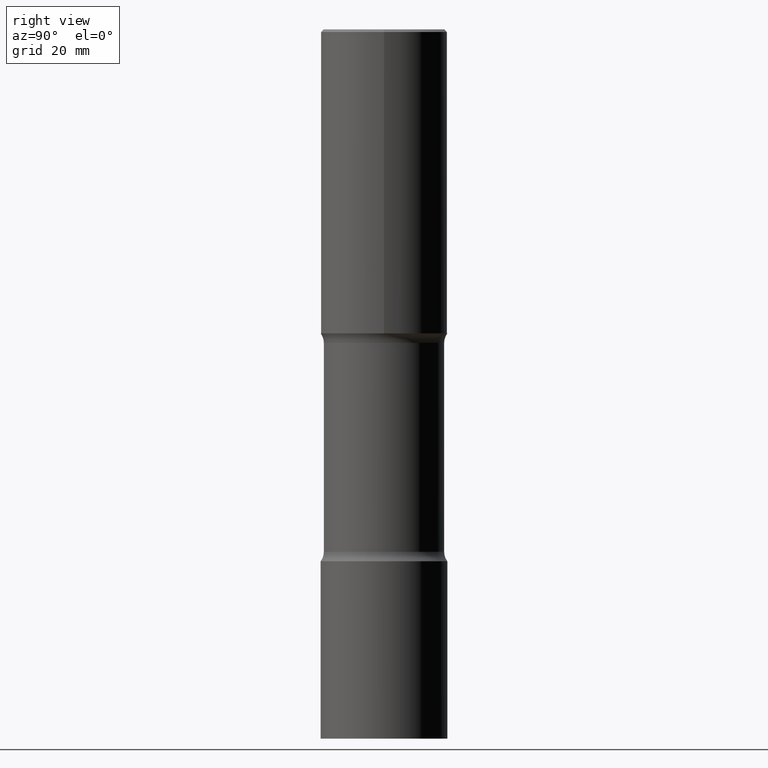
[diagram: clean part render]
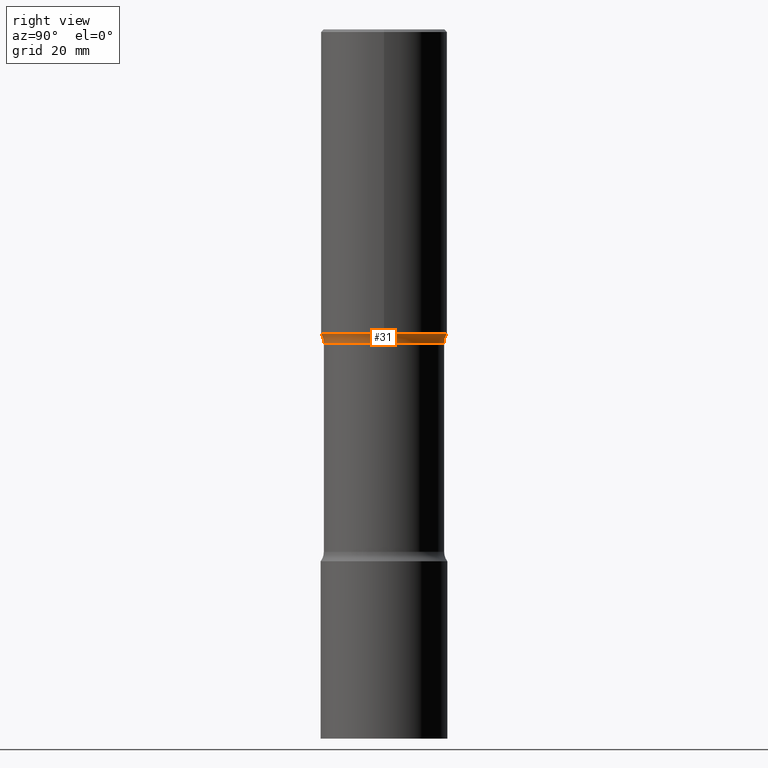
[diagram: same view with one face highlighted and labeled with its STEP entity id]
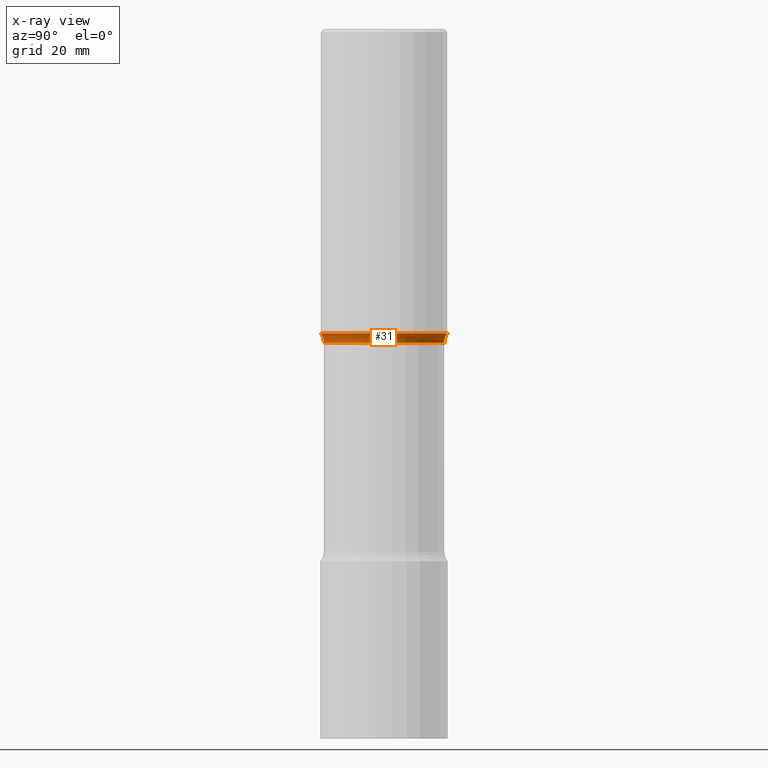
[diagram: x-ray of the same camera — body ghosted, the highlighted face saturated]
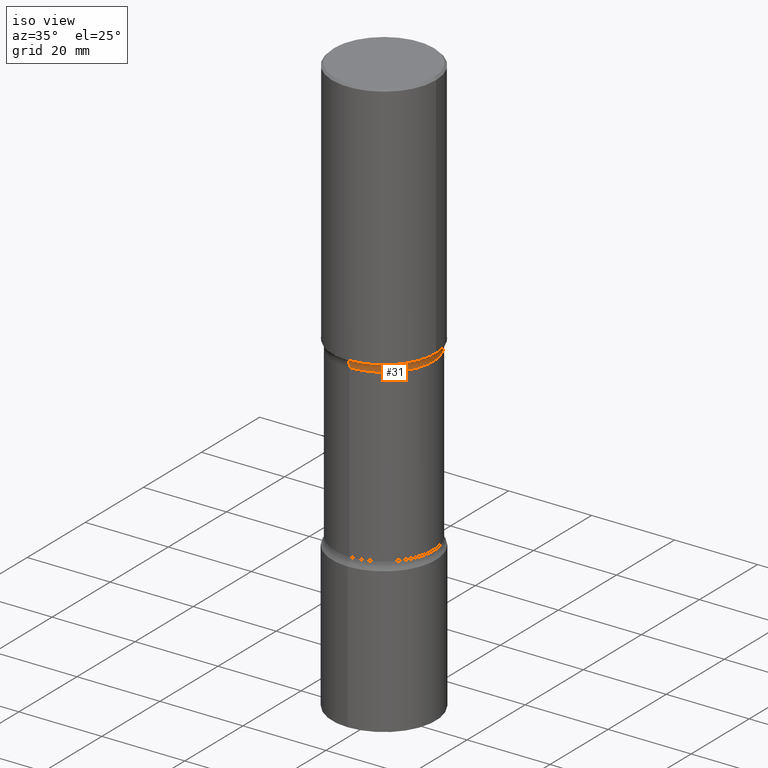
[diagram: same view with one face highlighted and labeled with its STEP entity id]
A machine part, right view. The second image highlights one B-rep face of the part: STEP entity #31.
The next image is the same camera in x-ray: the body ghosted, the highlighted face saturated — about 0% of this face is hidden behind the body in this view.
A second angle (iso view) of the same face is appended — the face is thin or edge-on in the first view.
In plain terms, the highlighted toroidal blend (fillet) surface has major radius 15.0495 mm and minor (blend) radius 3.175 mm.
Its self-contained STEP definition (entity closure, byte-faithful):
#31 = ADVANCED_FACE ( 'NONE', ( #336 ), #474, .F. ) ;
#34 = DIRECTION ( 'NONE',  ( 6.982962677686265133E-15, 1.000000000000000000, -3.341116092065950250E-15 ) ) ;
#62 = AXIS2_PLACEMENT_3D ( 'NONE', #116, #151, #343 ) ;
#63 = CIRCLE ( 'NONE', #103, 0.1249999999999999584 ) ;
#64 = VERTEX_POINT ( 'NONE', #504 ) ;
#89 = CARTESIAN_POINT ( 'NONE',  ( 5.781742129626663018E-29, -8.761572422563614587E-15, -2.436731050576252500 ) ) ;
#92 = ORIENTED_EDGE ( 'NONE', *, *, #305, .F. ) ;
#103 = AXIS2_PLACEMENT_3D ( 'NONE', #486, #287, #210 ) ;
#107 = CARTESIAN_POINT ( 'NONE',  ( 5.768185847438264700E-29, -8.780985790233064906E-15, -2.436731050576252056 ) ) ;
#109 = CARTESIAN_POINT ( 'NONE',  ( 5.591653048003855297E-29, -8.512555530124713029E-15, -2.362199999999999189 ) ) ;
#116 = CARTESIAN_POINT ( 'NONE',  ( -4.064845063679575306E-15, -0.5925000000000090195, -2.436731050576250279 ) ) ;
#123 = VERTEX_POINT ( 'NONE', #462 ) ;
#151 = DIRECTION ( 'NONE',  ( 1.000000000000000000, -6.860497997771530774E-15, 4.842640322805829987E-29 ) ) ;
#152 = EDGE_CURVE ( 'NONE', #123, #209, #205, .T. ) ;
#161 = EDGE_CURVE ( 'NONE', #402, #209, #450, .T. ) ;
#195 = CARTESIAN_POINT ( 'NONE',  ( -3.376394089603203436E-15, -0.4921500000000086916, -2.362199999999997413 ) ) ;
#202 = ORIENTED_EDGE ( 'NONE', *, *, #161, .F. ) ;
#205 = CIRCLE ( 'NONE', #475, 0.4921500000000000874 ) ;
#206 = DIRECTION ( 'NONE',  ( 2.550468296811760761E-29, -3.341116092065950250E-15, -1.000000000000000000 ) ) ;
#209 = VERTEX_POINT ( 'NONE', #195 ) ;
#210 = DIRECTION ( 'NONE',  ( -6.982962677686269077E-15, -1.000000000000000000, 0.000000000000000000 ) ) ;
#263 = DIRECTION ( 'NONE',  ( 6.982962677686265922E-15, 1.000000000000000000, -3.330506545156065468E-15 ) ) ;
#273 = EDGE_LOOP ( 'NONE', ( #202, #92, #281, #470 ) ) ;
#281 = ORIENTED_EDGE ( 'NONE', *, *, #472, .T. ) ;
#287 = DIRECTION ( 'NONE',  ( -1.000000000000000000, 6.982962677686265922E-15, -4.883557194083112901E-29 ) ) ;
#305 = EDGE_CURVE ( 'NONE', #64, #402, #484, .T. ) ;
#308 = DIRECTION ( 'NONE',  ( 2.550468296811760761E-29, -3.341116092065950250E-15, -1.000000000000000000 ) ) ;
#310 = DIRECTION ( 'NONE',  ( 6.982962677686265133E-15, 1.000000000000000000, -3.506115072082475215E-15 ) ) ;
#327 = CARTESIAN_POINT ( 'NONE',  ( -3.291838451780669043E-15, -0.4675000000000089639, -2.436731050576250723 ) ) ;
#334 = AXIS2_PLACEMENT_3D ( 'NONE', #89, #206, #310 ) ;
#336 = FACE_OUTER_BOUND ( 'NONE', #273, .T. ) ;
#343 = DIRECTION ( 'NONE',  ( 6.860497997771532351E-15, 1.000000000000000000, 0.000000000000000000 ) ) ;
#377 = DIRECTION ( 'NONE',  ( 2.550468296811760761E-29, -3.341116092065950250E-15, -1.000000000000000000 ) ) ;
#402 = VERTEX_POINT ( 'NONE', #327 ) ;
#450 = CIRCLE ( 'NONE', #62, 0.1249999999999999584 ) ;
#462 = CARTESIAN_POINT ( 'NONE',  ( 3.436665081823352969E-15, 0.4921499999999915942, -2.362200000000000966 ) ) ;
#470 = ORIENTED_EDGE ( 'NONE', *, *, #152, .T. ) ;
#472 = EDGE_CURVE ( 'NONE', #64, #123, #63, .T. ) ;
#474 = TOROIDAL_SURFACE ( 'NONE', #501, 0.5925000000000001377, 0.1250000000000000000 ) ;
#475 = AXIS2_PLACEMENT_3D ( 'NONE', #109, #308, #263 ) ;
#484 = CIRCLE ( 'NONE', #334, 0.4675000000000001932 ) ;
#486 = CARTESIAN_POINT ( 'NONE',  ( 4.137405386529171717E-15, 0.5924999999999913669, -2.436731050576254276 ) ) ;
#501 = AXIS2_PLACEMENT_3D ( 'NONE', #107, #377, #34 ) ;
#504 = CARTESIAN_POINT ( 'NONE',  ( 3.264535051818388378E-15, 0.4674999999999914779, -2.436731050576254276 ) ) ;